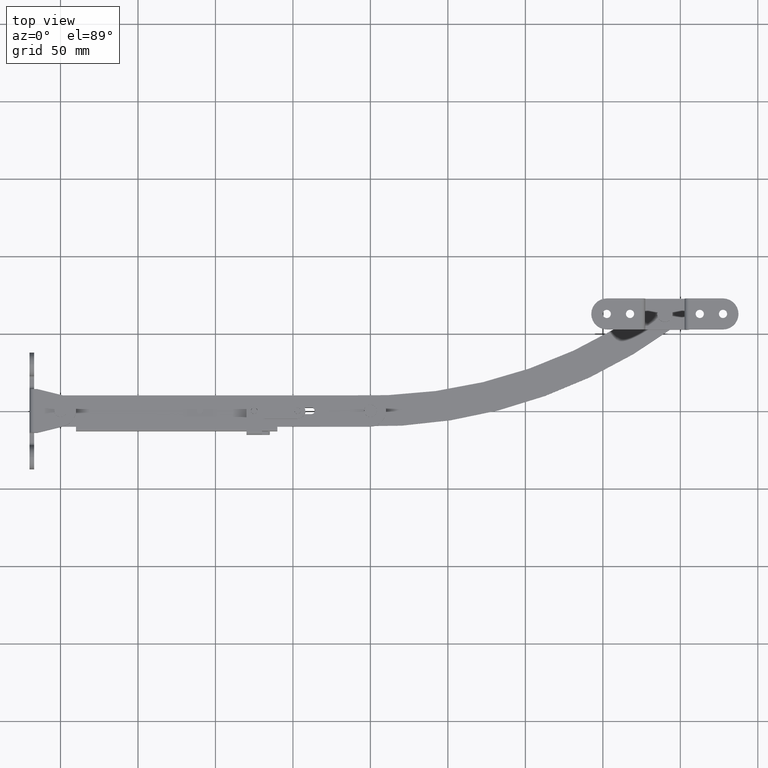
[diagram: clean part render]
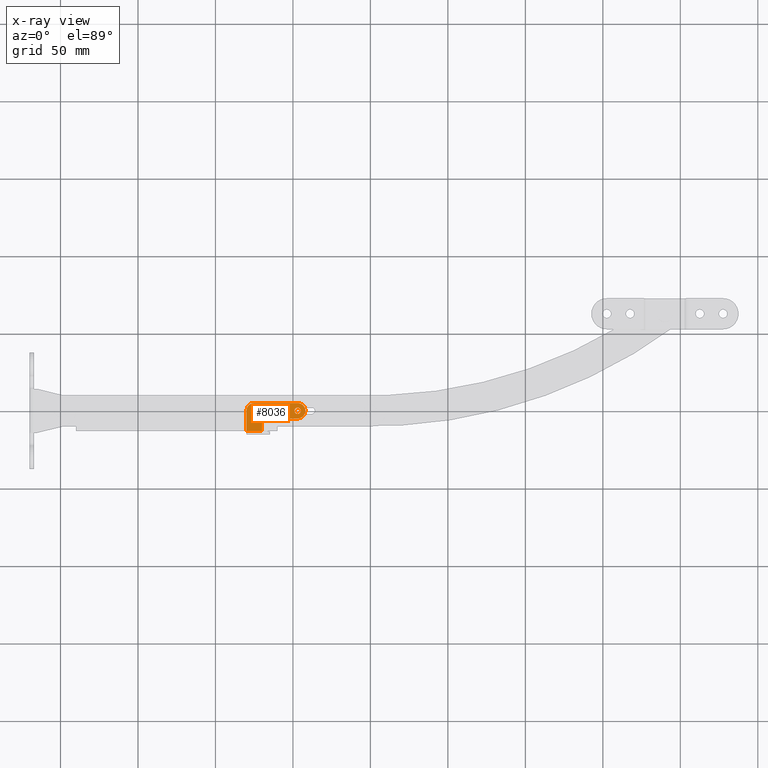
[diagram: x-ray — body ghosted, one internal face saturated and labeled with its STEP entity id]
A machine part, top view, then the same camera in x-ray: the body is ghosted and one INTERNAL B-rep face — a face not visible from any outside direction — is saturated and labeled: STEP entity #8036.
In plain terms, the highlighted planar face has unit normal (0, 0, 1).
Its self-contained STEP definition (entity closure, byte-faithful):
#80 = CARTESIAN_POINT ( 'NONE',  ( 125.0000000872663900, 5.000000000000000000, 7.149993999999829900 ) ) ;
#309 = ORIENTED_EDGE ( 'NONE', *, *, #6572, .F. ) ;
#428 = DIRECTION ( 'NONE',  ( -0.0000000000000000000, -0.0000000000000000000, -1.000000000000000000 ) ) ;
#695 = EDGE_LOOP ( 'NONE', ( #2205, #14077 ) ) ;
#956 = DIRECTION ( 'NONE',  ( -0.0000000000000000000, 1.000000000000000000, -0.0000000000000000000 ) ) ;
#1836 = AXIS2_PLACEMENT_3D ( 'NONE', #6461, #15466, #7767 ) ;
#1924 = EDGE_CURVE ( 'NONE', #11088, #10846, #13007, .T. ) ;
#2048 = EDGE_CURVE ( 'NONE', #10846, #11088, #15994, .T. ) ;
#2089 = CIRCLE ( 'NONE', #5482, 5.000000000000004400 ) ;
#2177 = CARTESIAN_POINT ( 'NONE',  ( 152.9999690000000200, 0.0000000000000000000, 7.149993999999829900 ) ) ;
#2205 = ORIENTED_EDGE ( 'NONE', *, *, #2565, .F. ) ;
#2408 = EDGE_CURVE ( 'NONE', #16705, #2752, #2089, .T. ) ;
#2565 = EDGE_CURVE ( 'NONE', #12774, #15407, #4301, .T. ) ;
#2640 = ORIENTED_EDGE ( 'NONE', *, *, #2048, .F. ) ;
#2736 = VECTOR ( 'NONE', #4951, 1000.000000000000000 ) ;
#2752 = VERTEX_POINT ( 'NONE', #8756 ) ;
#3125 = EDGE_CURVE ( 'NONE', #10972, #7944, #16310, .T. ) ;
#3201 = AXIS2_PLACEMENT_3D ( 'NONE', #6855, #15869, #8159 ) ;
#3272 = CARTESIAN_POINT ( 'NONE',  ( 125.0000000000000000, 0.0000000000000000000, 7.149993999999829900 ) ) ;
#3345 = DIRECTION ( 'NONE',  ( -0.0000000000000000000, -0.0000000000000000000, -1.000000000000000000 ) ) ;
#3464 = DIRECTION ( 'NONE',  ( 1.000000000000000000, 0.0000000000000000000, 0.0000000000000000000 ) ) ;
#3514 = CIRCLE ( 'NONE', #11232, 5.000000000000004400 ) ;
#4126 = LINE ( 'NONE', #12579, #10178 ) ;
#4182 = CARTESIAN_POINT ( 'NONE',  ( 0.0000000000000000000, 0.0000000000000000000, 7.149993999999880500 ) ) ;
#4301 = CIRCLE ( 'NONE', #10694, 2.049999999999996300 ) ;
#4582 = DIRECTION ( 'NONE',  ( 1.000000000000000000, 0.0000000000000000000, 0.0000000000000000000 ) ) ;
#4654 = EDGE_CURVE ( 'NONE', #15407, #12774, #8454, .T. ) ;
#4780 = FACE_BOUND ( 'NONE', #15023, .T. ) ;
#4951 = DIRECTION ( 'NONE',  ( -0.0000000000000000000, -1.000000000000000000, -0.0000000000000000000 ) ) ;
#4993 = CARTESIAN_POINT ( 'NONE',  ( 152.9999690000000200, 0.0000000000000000000, 7.149993999999829900 ) ) ;
#5215 = ORIENTED_EDGE ( 'NONE', *, *, #3125, .T. ) ;
#5417 = EDGE_CURVE ( 'NONE', #9685, #16705, #14476, .T. ) ;
#5458 = CARTESIAN_POINT ( 'NONE',  ( 120.0000000000000000, -13.30000299999980000, 7.149993999999880500 ) ) ;
#5482 = AXIS2_PLACEMENT_3D ( 'NONE', #4993, #14012, #6286 ) ;
#5611 = CARTESIAN_POINT ( 'NONE',  ( 122.9500000000000000, 0.0000000000000000000, 7.149993999999829900 ) ) ;
#5658 = EDGE_CURVE ( 'NONE', #5838, #13190, #9436, .T. ) ;
#5722 = ORIENTED_EDGE ( 'NONE', *, *, #9421, .T. ) ;
#5775 = CARTESIAN_POINT ( 'NONE',  ( 152.9999690000000200, 0.0000000000000000000, 7.149993999999829900 ) ) ;
#5838 = VERTEX_POINT ( 'NONE', #10867 ) ;
#6018 = EDGE_CURVE ( 'NONE', #11871, #9685, #6603, .T. ) ;
#6281 = VERTEX_POINT ( 'NONE', #11719 ) ;
#6286 = DIRECTION ( 'NONE',  ( 1.000000000000000000, 0.0000000000000000000, 0.0000000000000000000 ) ) ;
#6439 = CARTESIAN_POINT ( 'NONE',  ( 150.9499690000000100, 0.0000000000000000000, 7.149993999999829900 ) ) ;
#6461 = CARTESIAN_POINT ( 'NONE',  ( 125.0000000000000000, 0.0000000000000000000, 7.149993999999829900 ) ) ;
#6572 = EDGE_CURVE ( 'NONE', #6281, #13190, #16249, .T. ) ;
#6603 = CIRCLE ( 'NONE', #14145, 5.000000000000004400 ) ;
#6772 = DIRECTION ( 'NONE',  ( 1.000000000000000000, 0.0000000000000000000, 0.0000000000000000000 ) ) ;
#6797 = CARTESIAN_POINT ( 'NONE',  ( 152.9999690000000200, -5.000000000000000000, 7.149993999999829900 ) ) ;
#6855 = CARTESIAN_POINT ( 'NONE',  ( 152.9999690000000200, 0.0000000000000000000, 7.149993999999829900 ) ) ;
#7076 = DIRECTION ( 'NONE',  ( 1.000000000000000000, 0.0000000000000000000, 0.0000000000000000000 ) ) ;
#7458 = AXIS2_PLACEMENT_3D ( 'NONE', #8189, #428, #9486 ) ;
#7767 = DIRECTION ( 'NONE',  ( 1.000000000000000000, 0.0000000000000000000, 0.0000000000000000000 ) ) ;
#7944 = VERTEX_POINT ( 'NONE', #5458 ) ;
#8036 = ADVANCED_FACE ( 'NONE', ( #12461, #4780, #11246 ), #10570, .F. ) ;
#8159 = DIRECTION ( 'NONE',  ( 1.000000000000000000, 0.0000000000000000000, 0.0000000000000000000 ) ) ;
#8189 = CARTESIAN_POINT ( 'NONE',  ( 132.0000000000000000, -7.000000000000000000, 7.149993999999829900 ) ) ;
#8309 = CARTESIAN_POINT ( 'NONE',  ( 155.0499690000000000, 2.510525938252079100E-016, 7.149993999999829900 ) ) ;
#8409 = AXIS2_PLACEMENT_3D ( 'NONE', #4182, #14491, #6772 ) ;
#8454 = CIRCLE ( 'NONE', #1836, 2.049999999999996300 ) ;
#8478 = ORIENTED_EDGE ( 'NONE', *, *, #5658, .T. ) ;
#8494 = CARTESIAN_POINT ( 'NONE',  ( 130.0000000000000000, -13.30000299999980000, 7.149993999999880500 ) ) ;
#8746 = EDGE_LOOP ( 'NONE', ( #10768, #5215, #5722, #10836, #9400, #13861, #14672, #8478, #309 ) ) ;
#8756 = CARTESIAN_POINT ( 'NONE',  ( 157.9999690000000200, 0.0000000000000000000, 7.149993999999829900 ) ) ;
#9141 = CARTESIAN_POINT ( 'NONE',  ( 130.0000000000000000, -13.30000299999980000, 7.149993999999829900 ) ) ;
#9193 = EDGE_CURVE ( 'NONE', #2752, #5838, #3514, .T. ) ;
#9400 = ORIENTED_EDGE ( 'NONE', *, *, #5417, .T. ) ;
#9421 = EDGE_CURVE ( 'NONE', #7944, #11871, #4126, .T. ) ;
#9436 = LINE ( 'NONE', #6797, #12470 ) ;
#9486 = DIRECTION ( 'NONE',  ( 1.000000000000000000, 0.0000000000000000000, 0.0000000000000000000 ) ) ;
#9517 = EDGE_CURVE ( 'NONE', #6281, #10972, #9592, .T. ) ;
#9592 = LINE ( 'NONE', #12699, #2736 ) ;
#9685 = VERTEX_POINT ( 'NONE', #80 ) ;
#9822 = DIRECTION ( 'NONE',  ( 1.000000000000000000, -0.0000000000000000000, -0.0000000000000000000 ) ) ;
#10066 = CARTESIAN_POINT ( 'NONE',  ( 132.0000000000000000, -5.000000000000000000, 7.149993999999829900 ) ) ;
#10178 = VECTOR ( 'NONE', #956, 1000.000000000000000 ) ;
#10570 = PLANE ( 'NONE',  #8409 ) ;
#10577 = CARTESIAN_POINT ( 'NONE',  ( 120.0000000000000000, 0.0000000000000000000, 7.149993999999829900 ) ) ;
#10694 = AXIS2_PLACEMENT_3D ( 'NONE', #3272, #12320, #4582 ) ;
#10768 = ORIENTED_EDGE ( 'NONE', *, *, #9517, .T. ) ;
#10836 = ORIENTED_EDGE ( 'NONE', *, *, #6018, .T. ) ;
#10846 = VERTEX_POINT ( 'NONE', #8309 ) ;
#10867 = CARTESIAN_POINT ( 'NONE',  ( 152.9999693490660200, -5.000000000000000000, 7.149993999999829900 ) ) ;
#10972 = VERTEX_POINT ( 'NONE', #8494 ) ;
#11072 = ORIENTED_EDGE ( 'NONE', *, *, #1924, .F. ) ;
#11088 = VERTEX_POINT ( 'NONE', #6439 ) ;
#11095 = CARTESIAN_POINT ( 'NONE',  ( 125.0000000000000000, 0.0000000000000000000, 7.149993999999829900 ) ) ;
#11130 = CARTESIAN_POINT ( 'NONE',  ( 125.0000000000000000, 5.000000000000110100, 7.149993999999829900 ) ) ;
#11214 = DIRECTION ( 'NONE',  ( -0.0000000000000000000, -0.0000000000000000000, -1.000000000000000000 ) ) ;
#11232 = AXIS2_PLACEMENT_3D ( 'NONE', #2177, #11214, #3464 ) ;
#11246 = FACE_OUTER_BOUND ( 'NONE', #8746, .T. ) ;
#11719 = CARTESIAN_POINT ( 'NONE',  ( 130.0000000000000000, -7.000000000000000000, 7.149993999999829900 ) ) ;
#11871 = VERTEX_POINT ( 'NONE', #10577 ) ;
#12320 = DIRECTION ( 'NONE',  ( -0.0000000000000000000, -0.0000000000000000000, -1.000000000000000000 ) ) ;
#12381 = DIRECTION ( 'NONE',  ( 1.000000000000000000, 0.0000000000000000000, 0.0000000000000000000 ) ) ;
#12461 = FACE_BOUND ( 'NONE', #695, .T. ) ;
#12470 = VECTOR ( 'NONE', #15799, 1000.000000000000000 ) ;
#12579 = CARTESIAN_POINT ( 'NONE',  ( 120.0000000000000000, -15.30000299999980000, 7.149993999999829900 ) ) ;
#12699 = CARTESIAN_POINT ( 'NONE',  ( 130.0000000000000000, -7.000000000000000000, 7.149993999999829900 ) ) ;
#12774 = VERTEX_POINT ( 'NONE', #5611 ) ;
#12914 = VECTOR ( 'NONE', #15603, 1000.000000000000000 ) ;
#13007 = CIRCLE ( 'NONE', #16477, 2.049999999999996300 ) ;
#13190 = VERTEX_POINT ( 'NONE', #10066 ) ;
#13861 = ORIENTED_EDGE ( 'NONE', *, *, #2408, .T. ) ;
#14012 = DIRECTION ( 'NONE',  ( -0.0000000000000000000, -0.0000000000000000000, -1.000000000000000000 ) ) ;
#14075 = VECTOR ( 'NONE', #9822, 1000.000000000000000 ) ;
#14077 = ORIENTED_EDGE ( 'NONE', *, *, #4654, .F. ) ;
#14145 = AXIS2_PLACEMENT_3D ( 'NONE', #11095, #3345, #12381 ) ;
#14476 = LINE ( 'NONE', #11130, #14075 ) ;
#14491 = DIRECTION ( 'NONE',  ( 0.0000000000000000000, 0.0000000000000000000, 1.000000000000000000 ) ) ;
#14527 = CARTESIAN_POINT ( 'NONE',  ( 127.0500000000000000, 2.510525938252079100E-016, 7.149993999999829900 ) ) ;
#14672 = ORIENTED_EDGE ( 'NONE', *, *, #9193, .T. ) ;
#14788 = DIRECTION ( 'NONE',  ( -0.0000000000000000000, -0.0000000000000000000, -1.000000000000000000 ) ) ;
#15023 = EDGE_LOOP ( 'NONE', ( #11072, #2640 ) ) ;
#15407 = VERTEX_POINT ( 'NONE', #14527 ) ;
#15466 = DIRECTION ( 'NONE',  ( -0.0000000000000000000, -0.0000000000000000000, -1.000000000000000000 ) ) ;
#15603 = DIRECTION ( 'NONE',  ( -1.000000000000000000, -0.0000000000000000000, -0.0000000000000000000 ) ) ;
#15799 = DIRECTION ( 'NONE',  ( -1.000000000000000000, -0.0000000000000000000, -0.0000000000000000000 ) ) ;
#15851 = CARTESIAN_POINT ( 'NONE',  ( 152.9999690000000200, 5.000000000000110100, 7.149993999999829900 ) ) ;
#15869 = DIRECTION ( 'NONE',  ( -0.0000000000000000000, -0.0000000000000000000, -1.000000000000000000 ) ) ;
#15994 = CIRCLE ( 'NONE', #3201, 2.049999999999996300 ) ;
#16249 = CIRCLE ( 'NONE', #7458, 2.000000000000001800 ) ;
#16310 = LINE ( 'NONE', #9141, #12914 ) ;
#16477 = AXIS2_PLACEMENT_3D ( 'NONE', #5775, #14788, #7076 ) ;
#16705 = VERTEX_POINT ( 'NONE', #15851 ) ;